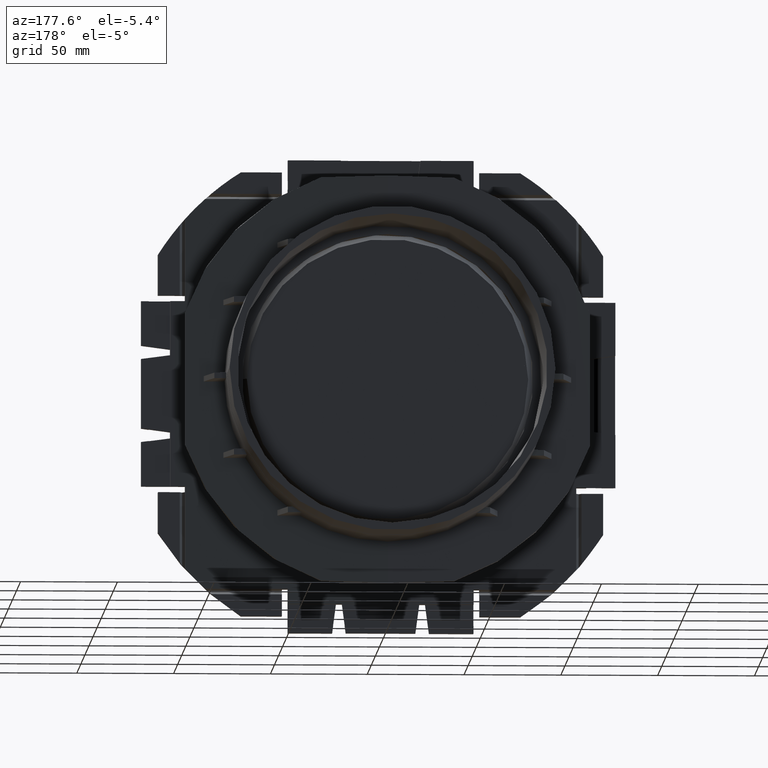
[diagram: clean part render]
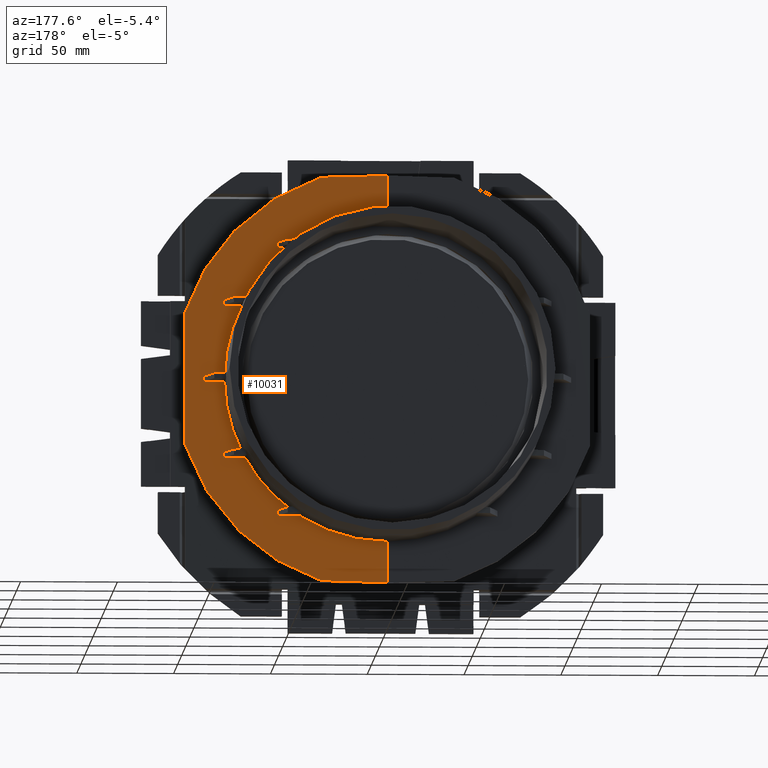
[diagram: same view with one face highlighted and labeled with its STEP entity id]
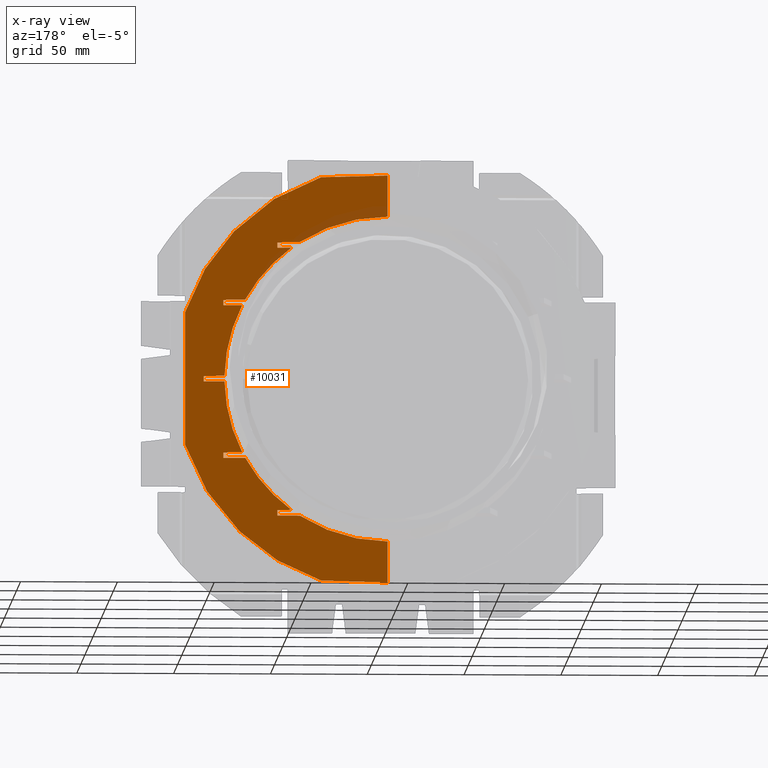
[diagram: x-ray of the same camera — body ghosted, the highlighted face saturated]
A machine part, auxiliary view. The second image highlights one B-rep face of the part: STEP entity #10031.
The next image is the same camera in x-ray: the body ghosted, the highlighted face saturated — about 4% of this face is hidden behind the body in this view.
In plain terms, the highlighted planar face has unit normal (0.0087, 1, 0).
Its self-contained STEP definition (entity closure, byte-faithful):
#336=ELLIPSE('',#10591,84.1532042961598,84.15);
#338=ELLIPSE('',#10593,84.1532042961598,84.15);
#340=ELLIPSE('',#10595,84.1532042961598,84.15);
#352=ELLIPSE('',#10607,84.1532042961598,84.15);
#354=ELLIPSE('',#10609,84.1532042961598,84.15);
#356=ELLIPSE('',#10611,84.1532042961598,84.15);
#398=ELLIPSE('',#10746,110.004188622431,110.);
#399=ELLIPSE('',#10747,110.004188622431,110.);
#707=FACE_OUTER_BOUND('',#1262,.T.);
#1262=EDGE_LOOP('',(#6582,#6583,#6584,#6585,#6586,#6587,#6588,#6589,#6590,
#6591,#6592,#6593,#6594,#6595,#6596,#6597,#6598,#6599,#6600,#6601,#6602,
#6603,#6604,#6605,#6606,#6607,#6608,#6609));
#1907=LINE('',#16797,#2891);
#1908=LINE('',#16799,#2892);
#1909=LINE('',#16801,#2893);
#1910=LINE('',#16803,#2894);
#1911=LINE('',#16807,#2895);
#1912=LINE('',#16811,#2896);
#1913=LINE('',#16812,#2897);
#1914=LINE('',#16814,#2898);
#1915=LINE('',#16816,#2899);
#1916=LINE('',#16817,#2900);
#1917=LINE('',#16819,#2901);
#1918=LINE('',#16821,#2902);
#1919=LINE('',#16822,#2903);
#1920=LINE('',#16824,#2904);
#1921=LINE('',#16826,#2905);
#1922=LINE('',#16827,#2906);
#1923=LINE('',#16829,#2907);
#1924=LINE('',#16831,#2908);
#1925=LINE('',#16832,#2909);
#1926=LINE('',#16833,#2910);
#2891=VECTOR('',#11782,10.);
#2892=VECTOR('',#11785,10.);
#2893=VECTOR('',#11786,10.);
#2894=VECTOR('',#11787,10.);
#2895=VECTOR('',#11790,10.);
#2896=VECTOR('',#11793,10.);
#2897=VECTOR('',#11794,10.);
#2898=VECTOR('',#11795,10.);
#2899=VECTOR('',#11796,10.);
#2900=VECTOR('',#11797,10.);
#2901=VECTOR('',#11798,10.);
#2902=VECTOR('',#11799,10.);
#2903=VECTOR('',#11800,10.);
#2904=VECTOR('',#11801,10.);
#2905=VECTOR('',#11802,10.);
#2906=VECTOR('',#11803,10.);
#2907=VECTOR('',#11804,10.);
#2908=VECTOR('',#11805,10.);
#2909=VECTOR('',#11806,10.);
#2910=VECTOR('',#11807,10.);
#3756=VERTEX_POINT('',#13821);
#3757=VERTEX_POINT('',#13823);
#3760=VERTEX_POINT('',#13829);
#3761=VERTEX_POINT('',#13831);
#3764=VERTEX_POINT('',#13837);
#3765=VERTEX_POINT('',#13839);
#3786=VERTEX_POINT('',#13881);
#3787=VERTEX_POINT('',#13883);
#3790=VERTEX_POINT('',#13889);
#3791=VERTEX_POINT('',#13891);
#3794=VERTEX_POINT('',#13897);
#3795=VERTEX_POINT('',#13899);
#4150=VERTEX_POINT('',#16791);
#4152=VERTEX_POINT('',#16795);
#4153=VERTEX_POINT('',#16800);
#4154=VERTEX_POINT('',#16802);
#4155=VERTEX_POINT('',#16804);
#4156=VERTEX_POINT('',#16806);
#4157=VERTEX_POINT('',#16808);
#4158=VERTEX_POINT('',#16810);
#4159=VERTEX_POINT('',#16813);
#4160=VERTEX_POINT('',#16815);
#4161=VERTEX_POINT('',#16818);
#4162=VERTEX_POINT('',#16820);
#4163=VERTEX_POINT('',#16823);
#4164=VERTEX_POINT('',#16825);
#4165=VERTEX_POINT('',#16828);
#4166=VERTEX_POINT('',#16830);
#4719=EDGE_CURVE('',#3757,#3756,#336,.F.);
#4723=EDGE_CURVE('',#3761,#3760,#338,.F.);
#4727=EDGE_CURVE('',#3765,#3764,#340,.F.);
#4749=EDGE_CURVE('',#3787,#3786,#352,.F.);
#4753=EDGE_CURVE('',#3791,#3790,#354,.F.);
#4757=EDGE_CURVE('',#3795,#3794,#356,.F.);
#5115=EDGE_CURVE('',#4152,#4150,#1907,.T.);
#5116=EDGE_CURVE('',#4152,#3787,#1908,.T.);
#5117=EDGE_CURVE('',#3786,#4153,#1909,.T.);
#5118=EDGE_CURVE('',#4154,#4153,#1910,.T.);
#5119=EDGE_CURVE('',#4154,#4155,#398,.T.);
#5120=EDGE_CURVE('',#4155,#4156,#1911,.T.);
#5121=EDGE_CURVE('',#4156,#4157,#399,.T.);
#5122=EDGE_CURVE('',#4157,#4158,#1912,.T.);
#5123=EDGE_CURVE('',#4158,#3765,#1913,.T.);
#5124=EDGE_CURVE('',#4159,#3764,#1914,.T.);
#5125=EDGE_CURVE('',#4160,#4159,#1915,.T.);
#5126=EDGE_CURVE('',#3761,#4160,#1916,.T.);
#5127=EDGE_CURVE('',#3760,#4161,#1917,.T.);
#5128=EDGE_CURVE('',#4162,#4161,#1918,.T.);
#5129=EDGE_CURVE('',#4162,#3757,#1919,.T.);
#5130=EDGE_CURVE('',#4163,#3756,#1920,.T.);
#5131=EDGE_CURVE('',#4164,#4163,#1921,.T.);
#5132=EDGE_CURVE('',#3795,#4164,#1922,.T.);
#5133=EDGE_CURVE('',#3794,#4165,#1923,.T.);
#5134=EDGE_CURVE('',#4166,#4165,#1924,.T.);
#5135=EDGE_CURVE('',#4166,#3791,#1925,.T.);
#5136=EDGE_CURVE('',#3790,#4150,#1926,.T.);
#6582=ORIENTED_EDGE('',*,*,#5115,.F.);
#6583=ORIENTED_EDGE('',*,*,#5116,.T.);
#6584=ORIENTED_EDGE('',*,*,#4749,.T.);
#6585=ORIENTED_EDGE('',*,*,#5117,.T.);
#6586=ORIENTED_EDGE('',*,*,#5118,.F.);
#6587=ORIENTED_EDGE('',*,*,#5119,.T.);
#6588=ORIENTED_EDGE('',*,*,#5120,.T.);
#6589=ORIENTED_EDGE('',*,*,#5121,.T.);
#6590=ORIENTED_EDGE('',*,*,#5122,.T.);
#6591=ORIENTED_EDGE('',*,*,#5123,.T.);
#6592=ORIENTED_EDGE('',*,*,#4727,.T.);
#6593=ORIENTED_EDGE('',*,*,#5124,.F.);
#6594=ORIENTED_EDGE('',*,*,#5125,.F.);
#6595=ORIENTED_EDGE('',*,*,#5126,.F.);
#6596=ORIENTED_EDGE('',*,*,#4723,.T.);
#6597=ORIENTED_EDGE('',*,*,#5127,.T.);
#6598=ORIENTED_EDGE('',*,*,#5128,.F.);
#6599=ORIENTED_EDGE('',*,*,#5129,.T.);
#6600=ORIENTED_EDGE('',*,*,#4719,.T.);
#6601=ORIENTED_EDGE('',*,*,#5130,.F.);
#6602=ORIENTED_EDGE('',*,*,#5131,.F.);
#6603=ORIENTED_EDGE('',*,*,#5132,.F.);
#6604=ORIENTED_EDGE('',*,*,#4757,.T.);
#6605=ORIENTED_EDGE('',*,*,#5133,.T.);
#6606=ORIENTED_EDGE('',*,*,#5134,.F.);
#6607=ORIENTED_EDGE('',*,*,#5135,.T.);
#6608=ORIENTED_EDGE('',*,*,#4753,.T.);
#6609=ORIENTED_EDGE('',*,*,#5136,.T.);
#9109=PLANE('',#10745);
#10031=ADVANCED_FACE('',(#707),#9109,.T.);
#10591=AXIS2_PLACEMENT_3D('',#13824,#11351,#11352);
#10593=AXIS2_PLACEMENT_3D('',#13832,#11357,#11358);
#10595=AXIS2_PLACEMENT_3D('',#13840,#11363,#11364);
#10607=AXIS2_PLACEMENT_3D('',#13884,#11397,#11398);
#10609=AXIS2_PLACEMENT_3D('',#13892,#11403,#11404);
#10611=AXIS2_PLACEMENT_3D('',#13900,#11409,#11410);
#10745=AXIS2_PLACEMENT_3D('',#16798,#11783,#11784);
#10746=AXIS2_PLACEMENT_3D('',#16805,#11788,#11789);
#10747=AXIS2_PLACEMENT_3D('',#16809,#11791,#11792);
#11351=DIRECTION('center_axis',(0.00872653549837393,0.999961923064171,0.));
#11352=DIRECTION('ref_axis',(-0.999961923064171,0.00872653549837393,0.));
#11357=DIRECTION('center_axis',(0.00872653549837393,0.999961923064171,0.));
#11358=DIRECTION('ref_axis',(-0.999961923064171,0.00872653549837393,0.));
#11363=DIRECTION('center_axis',(0.00872653549837393,0.999961923064171,0.));
#11364=DIRECTION('ref_axis',(-0.999961923064171,0.00872653549837393,0.));
#11397=DIRECTION('center_axis',(0.00872653549837393,0.999961923064171,0.));
#11398=DIRECTION('ref_axis',(-0.999961923064171,0.00872653549837393,0.));
#11403=DIRECTION('center_axis',(0.00872653549837393,0.999961923064171,0.));
#11404=DIRECTION('ref_axis',(-0.999961923064171,0.00872653549837393,0.));
#11409=DIRECTION('center_axis',(0.00872653549837393,0.999961923064171,0.));
#11410=DIRECTION('ref_axis',(-0.999961923064171,0.00872653549837393,0.));
#11782=DIRECTION('',(0.,0.,-1.));
#11783=DIRECTION('center_axis',(0.00872653549837393,0.999961923064171,0.));
#11784=DIRECTION('ref_axis',(0.,0.,1.));
#11785=DIRECTION('',(-0.999619287168872,0.00872354536021529,0.0261759522528506));
#11786=DIRECTION('',(0.,0.,1.));
#11787=DIRECTION('',(-0.99953842206173,0.00872283966111637,0.0291007713058166));
#11788=DIRECTION('center_axis',(0.00872653549837393,0.999961923064171,0.));
#11789=DIRECTION('ref_axis',(0.999961923064171,-0.00872653549837393,0.));
#11790=DIRECTION('',(0.,0.,-1.));
#11791=DIRECTION('center_axis',(0.00872653549837393,0.999961923064171,0.));
#11792=DIRECTION('ref_axis',(0.999961923064171,-0.00872653549837393,0.));
#11793=DIRECTION('',(-0.99953842206173,0.00872283966111637,-0.0291007713058166));
#11794=DIRECTION('',(0.,0.,1.));
#11795=DIRECTION('',(-0.999961923064171,0.00872653549837393,0.));
#11796=DIRECTION('',(0.,0.,-1.));
#11797=DIRECTION('',(0.999619287168872,-0.00872354536021529,-0.0261759522528506));
#11798=DIRECTION('',(0.999961923064171,-0.00872653549837393,0.));
#11799=DIRECTION('',(0.,0.,-1.));
#11800=DIRECTION('',(-0.999619287168872,0.00872354536021529,0.0261759522528506));
#11801=DIRECTION('',(-0.999961923064171,0.00872653549837393,0.));
#11802=DIRECTION('',(0.,0.,-1.));
#11803=DIRECTION('',(0.999619287168872,-0.00872354536021529,-0.0261759522528506));
#11804=DIRECTION('',(0.999961923064171,-0.00872653549837393,0.));
#11805=DIRECTION('',(0.,0.,-1.));
#11806=DIRECTION('',(-0.999619287168872,0.00872354536021529,0.0261759522528506));
#11807=DIRECTION('',(0.999961923064171,-0.00872653549837393,0.));
#13821=CARTESIAN_POINT('',(84.136629953903,-0.734249245967711,-1.5));
#13823=CARTESIAN_POINT('',(75.0547906896159,-0.654993235411356,-38.0526069348467));
#13824=CARTESIAN_POINT('Origin',(0.,-3.88578058618805E-15,0.));
#13829=CARTESIAN_POINT('',(73.4568306139938,-0.64104804909649,-41.0526069348467));
#13831=CARTESIAN_POINT('',(49.6780823463977,-0.433534056735444,-67.9213562466514));
#13832=CARTESIAN_POINT('Origin',(0.,-3.88578058618805E-15,0.));
#13837=CARTESIAN_POINT('',(45.2922038339443,-0.395259074810934,-70.9213562466514));
#13839=CARTESIAN_POINT('',(0.,0.,-84.15));
#13840=CARTESIAN_POINT('Origin',(0.,-3.88578058618805E-15,0.));
#13881=CARTESIAN_POINT('',(0.,0.,84.15));
#13883=CARTESIAN_POINT('',(45.2922038339442,-0.395259074810934,70.9213562466515));
#13884=CARTESIAN_POINT('Origin',(0.,-3.88578058618805E-15,0.));
#13889=CARTESIAN_POINT('',(49.6780823463977,-0.433534056735444,67.9213562466514));
#13891=CARTESIAN_POINT('',(73.4568306139938,-0.64104804909649,41.0526069348467));
#13892=CARTESIAN_POINT('Origin',(0.,-3.88578058618805E-15,0.));
#13897=CARTESIAN_POINT('',(75.0547906896159,-0.654993235411356,38.0526069348467));
#13899=CARTESIAN_POINT('',(84.1366299539029,-0.73424924596771,1.5));
#13900=CARTESIAN_POINT('Origin',(0.,-3.88578058618805E-15,0.));
#16791=CARTESIAN_POINT('',(56.8489685923582,-0.496113432946513,67.9213562466515));
#16795=CARTESIAN_POINT('',(56.8489685923582,-0.496113432946514,70.6187317110941));
#16797=CARTESIAN_POINT('',(56.8489685923582,-0.496113432946514,81.9981781233257));
#16798=CARTESIAN_POINT('Origin',(0.,-3.88578058618805E-15,94.575));
#16799=CARTESIAN_POINT('',(23.2110813884107,-0.202560038557207,71.4995707871698));
#16800=CARTESIAN_POINT('',(0.,-3.88578058618805E-15,105.5));
#16801=CARTESIAN_POINT('',(0.,-3.88578058618805E-15,47.2875));
#16802=CARTESIAN_POINT('',(34.3474889911911,-0.299745995370672,104.5));
#16803=CARTESIAN_POINT('',(17.3313273703577,-0.151248202599474,104.995412099126));
#16804=CARTESIAN_POINT('',(104.5,-0.911957684134298,34.3474889911911));
#16805=CARTESIAN_POINT('Origin',(0.,-3.88578058618805E-15,0.));
#16806=CARTESIAN_POINT('',(104.5,-0.911957684134297,-34.3474889911911));
#16807=CARTESIAN_POINT('',(104.5,-0.911957684134297,30.1137555044044));
#16808=CARTESIAN_POINT('',(34.3474889911912,-0.299745995370673,-104.5));
#16809=CARTESIAN_POINT('Origin',(0.,-3.88578058618805E-15,0.));
#16810=CARTESIAN_POINT('',(0.,-3.88578058618805E-15,-105.5));
#16811=CARTESIAN_POINT('',(20.0822624592897,-0.175255249421543,-104.915320797848));
#16812=CARTESIAN_POINT('',(0.,-3.88578058618805E-15,47.2875));
#16813=CARTESIAN_POINT('',(56.8489685923582,-0.496113432946513,-70.9213562466514));
#16814=CARTESIAN_POINT('',(23.5053078994296,-0.205127714419405,-70.9213562466514));
#16815=CARTESIAN_POINT('',(56.8489685923582,-0.496113432946514,-68.1091325114697));
#16816=CARTESIAN_POINT('',(56.8489685923582,-0.496113432946514,12.5768218766743));
#16817=CARTESIAN_POINT('',(21.3968570694367,-0.186727542782742,-67.1807862996685));
#16818=CARTESIAN_POINT('',(84.7354300798307,-0.739474895499773,-41.0526069348467));
#16819=CARTESIAN_POINT('',(37.4170589661284,-0.326533726716433,-41.0526069348467));
#16820=CARTESIAN_POINT('',(84.7354300798307,-0.739474895499773,-38.3061033986585));
#16821=CARTESIAN_POINT('',(84.7354300798307,-0.739474895499773,27.5111965325766));
#16822=CARTESIAN_POINT('',(35.7076557650399,-0.311615990979434,-37.0222659457396));
#16823=CARTESIAN_POINT('',(94.8569510176414,-0.827804070565443,-1.5));
#16824=CARTESIAN_POINT('',(42.4663937397947,-0.3705986037175,-1.5));
#16825=CARTESIAN_POINT('',(94.8569510176414,-0.827804070565443,1.21927851342844));
#16826=CARTESIAN_POINT('',(94.8569510176414,-0.827804070565443,47.2875));
#16827=CARTESIAN_POINT('',(41.2773943061258,-0.360222362856584,2.62230858318799));
#16828=CARTESIAN_POINT('',(84.7354300798307,-0.739474895499773,38.0526069348468));
#16829=CARTESIAN_POINT('',(37.4170589661284,-0.326533726716433,38.0526069348468));
#16830=CARTESIAN_POINT('',(84.7354300798307,-0.739474895499772,40.7572664138241));
#16831=CARTESIAN_POINT('',(84.7354300798307,-0.739474895499773,67.0638034674234));
#16832=CARTESIAN_POINT('',(36.7417675381202,-0.320640547703973,42.0140246969593));
#16833=CARTESIAN_POINT('',(23.5053078994296,-0.205127714419404,67.9213562466515));